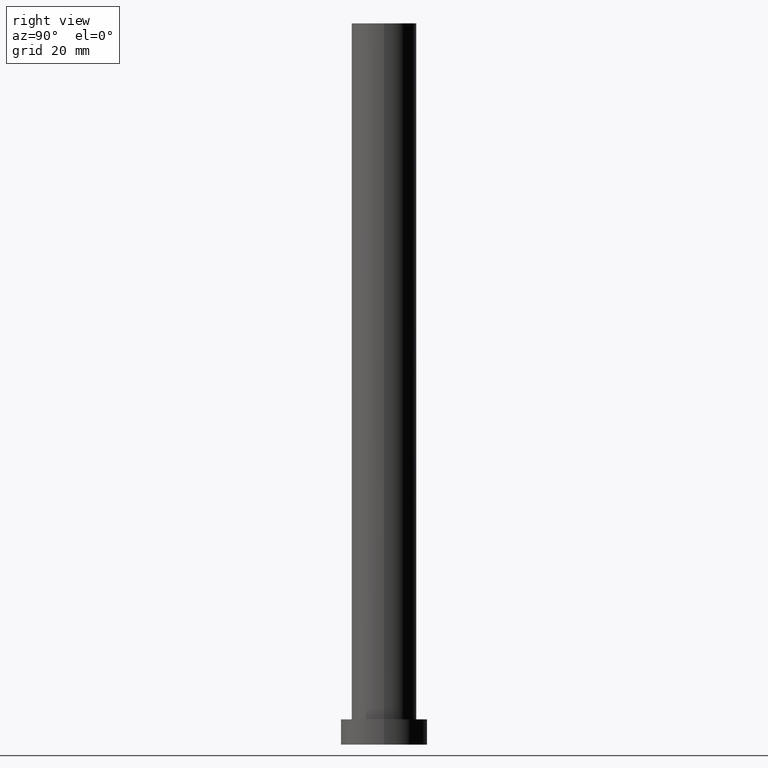
[diagram: clean part render]
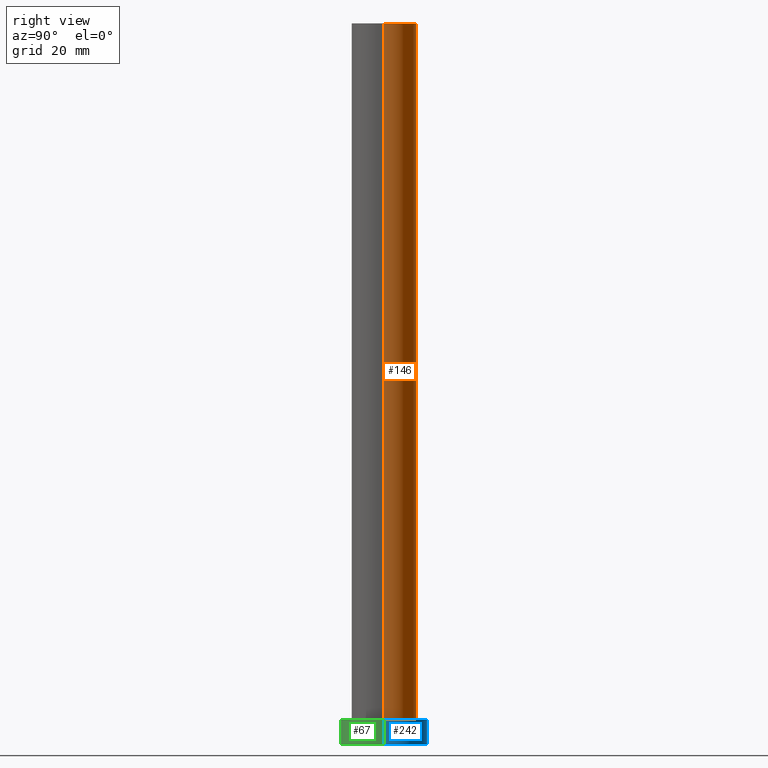
[diagram: same view with three faces highlighted in distinct colors, each labeled with its STEP entity id]
A machine part, right view with three faces highlighted in distinct colors.
Their STEP definitions:

[orange] entity #146 — the highlighted cylindrical surface (edge-blend (fillet) strip) has radius 9 mm, axis along (-0, -0, -1).
#2 = EDGE_CURVE ( 'NONE', #90, #34, #212, .T. ) ;
#4 = VECTOR ( 'NONE', #125, 1000.000000000000000 ) ;
#16 = EDGE_LOOP ( 'NONE', ( #31, #163, #40, #51 ) ) ;
#19 = VECTOR ( 'NONE', #138, 1000.000000000000000 ) ;
#22 = DIRECTION ( 'NONE',  ( 1.000000000000000000, 0.000000000000000000, 0.000000000000000000 ) ) ;
#31 = ORIENTED_EDGE ( 'NONE', *, *, #2, .F. ) ;
#34 = VERTEX_POINT ( 'NONE', #239 ) ;
#40 = ORIENTED_EDGE ( 'NONE', *, *, #111, .T. ) ;
#42 = CARTESIAN_POINT ( 'NONE',  ( 9.000000000000001776, 1.102182119232617911E-15, 200.0000000000000000 ) ) ;
#44 = CARTESIAN_POINT ( 'NONE',  ( 0.000000000000000000, 0.000000000000000000, 200.0000000000000000 ) ) ;
#45 = DIRECTION ( 'NONE',  ( 1.000000000000000000, 0.000000000000000000, 0.000000000000000000 ) ) ;
#50 = CARTESIAN_POINT ( 'NONE',  ( 0.000000000000000000, 0.000000000000000000, 200.0000000000000000 ) ) ;
#51 = ORIENTED_EDGE ( 'NONE', *, *, #127, .F. ) ;
#62 = CARTESIAN_POINT ( 'NONE',  ( 9.000000000000001776, 1.102182119232617911E-15, 200.0000000000000000 ) ) ;
#65 = VERTEX_POINT ( 'NONE', #116 ) ;
#69 = FACE_OUTER_BOUND ( 'NONE', #16, .T. ) ;
#90 = VERTEX_POINT ( 'NONE', #42 ) ;
#92 = CARTESIAN_POINT ( 'NONE',  ( 9.000000000000001776, 1.102182119232617911E-15, 7.000000000000000000 ) ) ;
#102 = CARTESIAN_POINT ( 'NONE',  ( -9.000000000000001776, 0.000000000000000000, 200.0000000000000000 ) ) ;
#111 = EDGE_CURVE ( 'NONE', #206, #65, #130, .T. ) ;
#114 = EDGE_CURVE ( 'NONE', #90, #206, #236, .T. ) ;
#116 = CARTESIAN_POINT ( 'NONE',  ( -9.000000000000001776, 0.000000000000000000, 7.000000000000000000 ) ) ;
#122 = DIRECTION ( 'NONE',  ( 0.000000000000000000, 0.000000000000000000, 1.000000000000000000 ) ) ;
#125 = DIRECTION ( 'NONE',  ( -0.000000000000000000, -0.000000000000000000, -1.000000000000000000 ) ) ;
#127 = EDGE_CURVE ( 'NONE', #34, #65, #197, .T. ) ;
#130 = CIRCLE ( 'NONE', #235, 9.000000000000001776 ) ;
#138 = DIRECTION ( 'NONE',  ( -0.000000000000000000, -0.000000000000000000, -1.000000000000000000 ) ) ;
#139 = DIRECTION ( 'NONE',  ( 0.000000000000000000, 0.000000000000000000, 1.000000000000000000 ) ) ;
#146 = ADVANCED_FACE ( 'NONE', ( #69 ), #164, .T. ) ;
#163 = ORIENTED_EDGE ( 'NONE', *, *, #114, .T. ) ;
#164 = CYLINDRICAL_SURFACE ( 'NONE', #214, 9.000000000000001776 ) ;
#185 = DIRECTION ( 'NONE',  ( -0.000000000000000000, -0.000000000000000000, -1.000000000000000000 ) ) ;
#195 = CARTESIAN_POINT ( 'NONE',  ( 0.000000000000000000, 0.000000000000000000, 7.000000000000000000 ) ) ;
#197 = LINE ( 'NONE', #102, #4 ) ;
#206 = VERTEX_POINT ( 'NONE', #92 ) ;
#212 = CIRCLE ( 'NONE', #215, 9.000000000000001776 ) ;
#214 = AXIS2_PLACEMENT_3D ( 'NONE', #50, #185, #225 ) ;
#215 = AXIS2_PLACEMENT_3D ( 'NONE', #44, #139, #45 ) ;
#225 = DIRECTION ( 'NONE',  ( -1.000000000000000000, 0.000000000000000000, 0.000000000000000000 ) ) ;
#235 = AXIS2_PLACEMENT_3D ( 'NONE', #195, #122, #22 ) ;
#236 = LINE ( 'NONE', #62, #19 ) ;
#239 = CARTESIAN_POINT ( 'NONE',  ( -9.000000000000001776, 0.000000000000000000, 200.0000000000000000 ) ) ;

[blue] entity #242 — the highlighted cylindrical surface (partial cylindrical patch) has radius 12 mm, axis along (-0, -0, -1).
#3 = VERTEX_POINT ( 'NONE', #85 ) ;
#7 = CARTESIAN_POINT ( 'NONE',  ( -12.00000000000000178, 0.000000000000000000, 7.000000000000000000 ) ) ;
#8 = EDGE_CURVE ( 'NONE', #3, #243, #59, .T. ) ;
#9 = CARTESIAN_POINT ( 'NONE',  ( 0.000000000000000000, 0.000000000000000000, 0.000000000000000000 ) ) ;
#12 = ORIENTED_EDGE ( 'NONE', *, *, #150, .T. ) ;
#18 = VERTEX_POINT ( 'NONE', #38 ) ;
#27 = DIRECTION ( 'NONE',  ( 0.000000000000000000, 0.000000000000000000, 1.000000000000000000 ) ) ;
#35 = AXIS2_PLACEMENT_3D ( 'NONE', #9, #27, #201 ) ;
#38 = CARTESIAN_POINT ( 'NONE',  ( -12.00000000000000178, 0.000000000000000000, 0.000000000000000000 ) ) ;
#49 = EDGE_CURVE ( 'NONE', #3, #77, #83, .T. ) ;
#55 = ORIENTED_EDGE ( 'NONE', *, *, #49, .T. ) ;
#59 = CIRCLE ( 'NONE', #103, 12.00000000000000178 ) ;
#71 = DIRECTION ( 'NONE',  ( -1.000000000000000000, 0.000000000000000000, 0.000000000000000000 ) ) ;
#74 = CYLINDRICAL_SURFACE ( 'NONE', #124, 12.00000000000000178 ) ;
#77 = VERTEX_POINT ( 'NONE', #155 ) ;
#83 = LINE ( 'NONE', #157, #192 ) ;
#85 = CARTESIAN_POINT ( 'NONE',  ( 12.00000000000000178, 1.469576158976824144E-15, 7.000000000000000000 ) ) ;
#86 = CARTESIAN_POINT ( 'NONE',  ( 0.000000000000000000, 0.000000000000000000, 7.000000000000000000 ) ) ;
#88 = VECTOR ( 'NONE', #126, 1000.000000000000000 ) ;
#93 = CIRCLE ( 'NONE', #35, 12.00000000000000178 ) ;
#103 = AXIS2_PLACEMENT_3D ( 'NONE', #86, #219, #118 ) ;
#112 = DIRECTION ( 'NONE',  ( -0.000000000000000000, -0.000000000000000000, -1.000000000000000000 ) ) ;
#118 = DIRECTION ( 'NONE',  ( 1.000000000000000000, 0.000000000000000000, 0.000000000000000000 ) ) ;
#124 = AXIS2_PLACEMENT_3D ( 'NONE', #160, #112, #71 ) ;
#126 = DIRECTION ( 'NONE',  ( -0.000000000000000000, -0.000000000000000000, -1.000000000000000000 ) ) ;
#148 = ORIENTED_EDGE ( 'NONE', *, *, #8, .F. ) ;
#150 = EDGE_CURVE ( 'NONE', #77, #18, #93, .T. ) ;
#155 = CARTESIAN_POINT ( 'NONE',  ( 12.00000000000000178, 1.469576158976824144E-15, 0.000000000000000000 ) ) ;
#157 = CARTESIAN_POINT ( 'NONE',  ( 12.00000000000000178, 1.469576158976824144E-15, 7.000000000000000000 ) ) ;
#158 = DIRECTION ( 'NONE',  ( -0.000000000000000000, -0.000000000000000000, -1.000000000000000000 ) ) ;
#160 = CARTESIAN_POINT ( 'NONE',  ( 0.000000000000000000, 0.000000000000000000, 7.000000000000000000 ) ) ;
#165 = CARTESIAN_POINT ( 'NONE',  ( -12.00000000000000178, 0.000000000000000000, 7.000000000000000000 ) ) ;
#175 = EDGE_CURVE ( 'NONE', #243, #18, #187, .T. ) ;
#186 = FACE_OUTER_BOUND ( 'NONE', #220, .T. ) ;
#187 = LINE ( 'NONE', #7, #88 ) ;
#192 = VECTOR ( 'NONE', #158, 1000.000000000000000 ) ;
#201 = DIRECTION ( 'NONE',  ( 1.000000000000000000, 0.000000000000000000, 0.000000000000000000 ) ) ;
#211 = ORIENTED_EDGE ( 'NONE', *, *, #175, .F. ) ;
#219 = DIRECTION ( 'NONE',  ( 0.000000000000000000, 0.000000000000000000, 1.000000000000000000 ) ) ;
#220 = EDGE_LOOP ( 'NONE', ( #148, #55, #12, #211 ) ) ;
#242 = ADVANCED_FACE ( 'NONE', ( #186 ), #74, .T. ) ;
#243 = VERTEX_POINT ( 'NONE', #165 ) ;

[green] entity #67 — the highlighted cylindrical surface (partial cylindrical patch) has radius 12 mm, axis along (-0, -0, -1).
#3 = VERTEX_POINT ( 'NONE', #85 ) ;
#7 = CARTESIAN_POINT ( 'NONE',  ( -12.00000000000000178, 0.000000000000000000, 7.000000000000000000 ) ) ;
#18 = VERTEX_POINT ( 'NONE', #38 ) ;
#24 = AXIS2_PLACEMENT_3D ( 'NONE', #128, #224, #109 ) ;
#28 = AXIS2_PLACEMENT_3D ( 'NONE', #233, #156, #172 ) ;
#33 = CIRCLE ( 'NONE', #205, 12.00000000000000178 ) ;
#38 = CARTESIAN_POINT ( 'NONE',  ( -12.00000000000000178, 0.000000000000000000, 0.000000000000000000 ) ) ;
#49 = EDGE_CURVE ( 'NONE', #3, #77, #83, .T. ) ;
#64 = DIRECTION ( 'NONE',  ( 0.000000000000000000, 0.000000000000000000, 1.000000000000000000 ) ) ;
#67 = ADVANCED_FACE ( 'NONE', ( #135 ), #177, .T. ) ;
#77 = VERTEX_POINT ( 'NONE', #155 ) ;
#80 = CARTESIAN_POINT ( 'NONE',  ( 0.000000000000000000, 0.000000000000000000, 7.000000000000000000 ) ) ;
#81 = EDGE_CURVE ( 'NONE', #243, #3, #33, .T. ) ;
#83 = LINE ( 'NONE', #157, #192 ) ;
#85 = CARTESIAN_POINT ( 'NONE',  ( 12.00000000000000178, 1.469576158976824144E-15, 7.000000000000000000 ) ) ;
#88 = VECTOR ( 'NONE', #126, 1000.000000000000000 ) ;
#101 = CIRCLE ( 'NONE', #24, 12.00000000000000178 ) ;
#109 = DIRECTION ( 'NONE',  ( 1.000000000000000000, 0.000000000000000000, 0.000000000000000000 ) ) ;
#126 = DIRECTION ( 'NONE',  ( -0.000000000000000000, -0.000000000000000000, -1.000000000000000000 ) ) ;
#128 = CARTESIAN_POINT ( 'NONE',  ( 0.000000000000000000, 0.000000000000000000, 0.000000000000000000 ) ) ;
#132 = ORIENTED_EDGE ( 'NONE', *, *, #81, .F. ) ;
#135 = FACE_OUTER_BOUND ( 'NONE', #191, .T. ) ;
#143 = ORIENTED_EDGE ( 'NONE', *, *, #175, .T. ) ;
#145 = ORIENTED_EDGE ( 'NONE', *, *, #49, .F. ) ;
#151 = DIRECTION ( 'NONE',  ( 1.000000000000000000, 0.000000000000000000, 0.000000000000000000 ) ) ;
#155 = CARTESIAN_POINT ( 'NONE',  ( 12.00000000000000178, 1.469576158976824144E-15, 0.000000000000000000 ) ) ;
#156 = DIRECTION ( 'NONE',  ( -0.000000000000000000, -0.000000000000000000, -1.000000000000000000 ) ) ;
#157 = CARTESIAN_POINT ( 'NONE',  ( 12.00000000000000178, 1.469576158976824144E-15, 7.000000000000000000 ) ) ;
#158 = DIRECTION ( 'NONE',  ( -0.000000000000000000, -0.000000000000000000, -1.000000000000000000 ) ) ;
#165 = CARTESIAN_POINT ( 'NONE',  ( -12.00000000000000178, 0.000000000000000000, 7.000000000000000000 ) ) ;
#172 = DIRECTION ( 'NONE',  ( -1.000000000000000000, 0.000000000000000000, 0.000000000000000000 ) ) ;
#175 = EDGE_CURVE ( 'NONE', #243, #18, #187, .T. ) ;
#177 = CYLINDRICAL_SURFACE ( 'NONE', #28, 12.00000000000000178 ) ;
#187 = LINE ( 'NONE', #7, #88 ) ;
#191 = EDGE_LOOP ( 'NONE', ( #145, #132, #143, #203 ) ) ;
#192 = VECTOR ( 'NONE', #158, 1000.000000000000000 ) ;
#203 = ORIENTED_EDGE ( 'NONE', *, *, #237, .T. ) ;
#205 = AXIS2_PLACEMENT_3D ( 'NONE', #80, #64, #151 ) ;
#224 = DIRECTION ( 'NONE',  ( 0.000000000000000000, 0.000000000000000000, 1.000000000000000000 ) ) ;
#233 = CARTESIAN_POINT ( 'NONE',  ( 0.000000000000000000, 0.000000000000000000, 7.000000000000000000 ) ) ;
#237 = EDGE_CURVE ( 'NONE', #18, #77, #101, .T. ) ;
#243 = VERTEX_POINT ( 'NONE', #165 ) ;